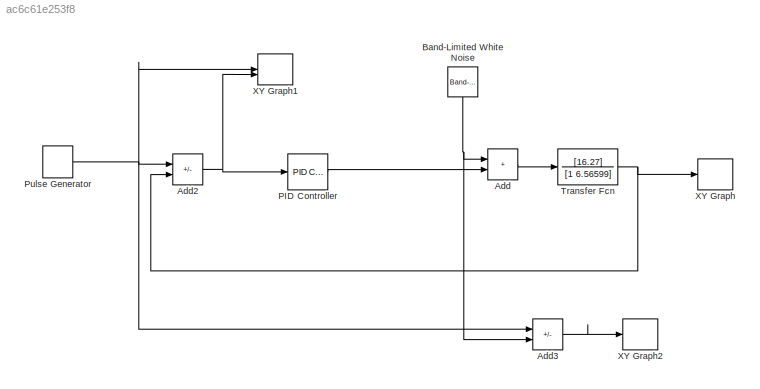
MODEL slx_ac6c61e253f8
KIND model
CONFIG AbsTol = auto
CONFIG EnableMultiTasking = off
CONFIG FixedStep = auto
CONFIG MaxStep = auto
CONFIG MinStep = auto
CONFIG RelTol = 1e-3
CONFIG SampleTimeConstraint = Unconstrained
CONFIG SolverName = VariableStepAuto
CONFIG StartTime = 0.0
CONFIG StopTime = 10.0
BLOCK [Sum] Add
  IconShape = rectangular
BLOCK [Sum] Add2
  IconShape = rectangular
  Inputs = +-
  NameLocation = top
BLOCK [Sum] Add3
  IconShape = rectangular
  Inputs = +-
  NameLocation = top
BLOCK [Reference] Band-Limited White Noise  REF=simulink/Sources/Band-Limited
White Noise
  NameLocation = left
  SourceBlock = simulink/Sources/Band-Limited\nWhite Noise
  SourceType = Band-Limited White Noise.
BLOCK [Reference] PID Controller  REF=slpidlib/PID Controller
  LibrarySourceBlock = simulink/Continuous/PID Controller
  SourceBlock = slpidlib/PID Controller
  SourceType = PID 1dof
BLOCK [DiscretePulseGenerator] Pulse Generator
  Period = 4
  PulseType = Time based
  PulseWidth = 70
BLOCK [TransferFcn] Transfer Fcn
  Denominator = [1 6.56599]
  Numerator = [16.27]
BLOCK [Record] XY Graph
  CompatibilityTag = XY
  FileSettingsInternal = {"entries":[{"content":{"excelSettings":{"content":{},"type":"Streamout.ExcelSettings"}},"type":"Streamout.FileSettingStorage","uuid":""}],"packageUris":["http:\/\/schema.mathworks.com\/mf0\/streamout_blocks\/R2020a"],"version":"1.0"}  <repeated x3 — deduplicated; at blocks: XY Graph, XY Graph1, XY Graph2>
  Layout = [1 1]
  SignalsInternal = {"entries":[{"content":{"signals":[{"content":{"blockPath":[],"dimensions":[1],"domain":"","lineColor":"#fe330a","lineWidth":2,"port":1,"sid":[""],"signalID":1,"signalName":"Transfer Fcn"},"type":"RecordBlkView.Signal","uuid":""},{"content":{"blockPath":[],"dimensions":[1],"domain":"","lineColor":"#d95319","lineWidth":2,"port":2,"sid":[""],"signalID":2},"type":"RecordBlkView.Signal","uuid":""}]},"...<+142ch>
  VisualizationBindings = {"xyplotplugin":{"info":[{"series":[],"subplotID":1}]}}
BLOCK [Record] XY Graph1
  CompatibilityTag = XY
  Layout = [1 1]
  SignalsInternal = {"entries":[{"content":{"signals":[{"content":{"blockPath":[],"dimensions":[1],"domain":"","lineColor":"#22b573","lineWidth":2,"port":1,"sid":[""],"signalID":1,"signalName":"Pulse\nGenerator"},"type":"RecordBlkView.Signal","uuid":""},{"content":{"blockPath":[],"dimensions":[1],"domain":"","lineColor":"#edb120","lineWidth":2,"port":2,"sid":[""],"signalID":2,"signalName":"Add2"},"type":"RecordBlkVie...<+166ch>
  VisualizationBindings = {"xyplotplugin":{"info":[{"series":[],"subplotID":1}]}}
BLOCK [Record] XY Graph2
  CompatibilityTag = XY
  Layout = [1 1]
  SignalsInternal = {"entries":[{"content":{"signals":[{"content":{"blockPath":[],"dimensions":[1],"domain":"","lineColor":"#a2142f","plots":[ 1 ],"port":1,"sid":[""],"signalID":1,"signalName":"Add3"},"type":"RecordBlkView.Signal","uuid":""},{"content":{"blockPath":[],"dimensions":[1],"domain":"","lineColor":"#7e2f8e","lineWidth":2,"port":2,"sid":[""],"signalID":2},"type":"RecordBlkView.Signal","uuid":""}]},"type":"R...<+134ch>
  VisualizationBindings = {"xyplotplugin":{"info":[{"series":[{"bindingParametersList":[{"parameter":"X-Axis","signalID":1,"signalName":"Add3"}],"seriesID":0}],"subplotID":1}]}}
NET Add2:1 -> PID Controller:1, XY Graph1:2
LINE Add3:1 -> XY Graph2:1
LINE Add:1 -> Transfer Fcn:1
NET Band-Limited White Noise:1 -> Add3:2, Add:1
LINE PID Controller:1 -> Add:2
NET Pulse Generator:1 -> Add2:1, Add3:1, XY Graph1:1
NET Transfer Fcn:1 -> Add2:2, XY Graph:1
note: NET lines group one-source signal fan-out (src -> all destinations, sorted); 1:1 wires keep LINE
